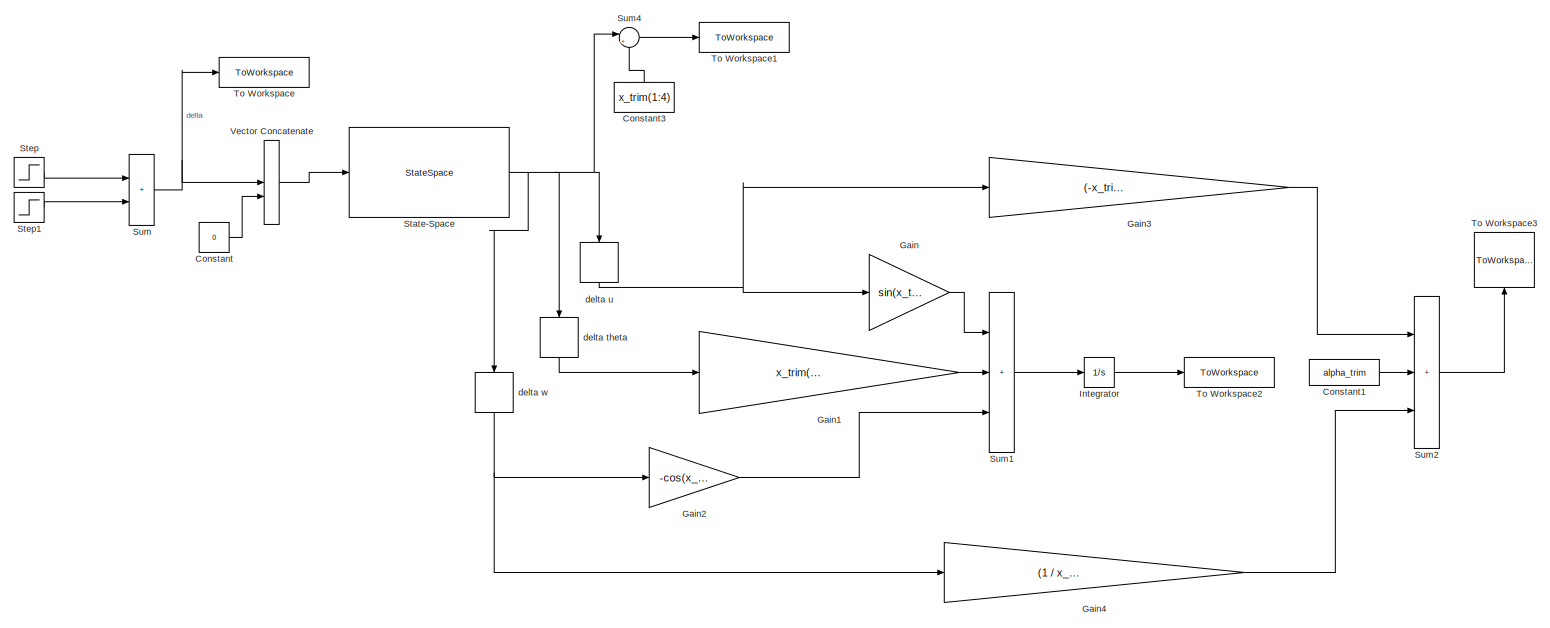
[diagram: root canvas - part 1/1, most of the canvas]
MODEL slx_d81637e92e1e
KIND model
CONFIG AbsTol = auto
CONFIG EnableMultiTasking = off
CONFIG FixedStep = auto
CONFIG MaxStep = auto
CONFIG MinStep = auto
CONFIG RelTol = 1e-3
CONFIG SampleTimeConstraint = Unconstrained
CONFIG SolverName = VariableStepAuto
CONFIG StartTime = 0.0
CONFIG StopTime = 10.0
BLOCK [Constant] Constant
  Value = 0
BLOCK [Constant] Constant1
  Value = alpha_trim
BLOCK [Constant] Constant3
  NameLocation = right
  Value = x_trim(1:4)
BLOCK [Gain] Gain
  Gain = sin(x_trim(4))
BLOCK [Gain] Gain1
  Gain = x_trim(1)*cos(x_trim(4)) + x_trim(2)*sin(x_trim(4))
BLOCK [Gain] Gain2
  Gain = -cos(x_trim(4))
BLOCK [Gain] Gain3
  Gain = (-x_trim(2)/x_trim(1)^2) / (1 + (x_trim(2)/x_trim(1))^2)
BLOCK [Gain] Gain4
  Gain = (1 / x_trim(1)) / (1 + (x_trim(2)/x_trim(1))^2)
BLOCK [Integrator] Integrator
  InitialCondition = h_trim
BLOCK [StateSpace] State-Space
  A = A
  B = B
  C = eye(4)
  D = zeros(4,2)
  InitialCondition = zeros(4,1)
BLOCK [Step] Step
  After = - pi/180
  SampleTime = 0
  Time = 5
BLOCK [Step] Step1
  After = (pi/180)
  SampleTime = 0
  Time = 10
BLOCK [Sum] Sum
  IconShape = rectangular
BLOCK [Sum] Sum1
  IconShape = rectangular
  Inputs = +++
BLOCK [Sum] Sum2
  IconShape = rectangular
  Inputs = +++
BLOCK [Sum] Sum4
  Inputs = |++
BLOCK [ToWorkspace] To Workspace
  FixptAsFi = on
  MaxDataPoints = inf
  SampleTime = -1
  VariableName = delta
BLOCK [ToWorkspace] To Workspace1
  FixptAsFi = on
  MaxDataPoints = inf
  SampleTime = -1
  Save2DSignal = 2-D array (concatenate along first dimension)
  SaveFormat = Structure
  VariableName = y
BLOCK [ToWorkspace] To Workspace2
  FixptAsFi = on
  MaxDataPoints = inf
  SampleTime = -1
  VariableName = h
BLOCK [ToWorkspace] To Workspace3
  FixptAsFi = on
  MaxDataPoints = inf
  NameLocation = right
  SampleTime = -1
  VariableName = alpha
BLOCK [Concatenate] Vector Concatenate
BLOCK [Selector] delta theta
  IndexOptions = Index vector (dialog)
  Indices = 4
  InputPortWidth = 4
  NameLocation = left
  OutputSizes = 1
BLOCK [Selector] delta u
  IndexOptions = Index vector (dialog)
  Indices = 1
  InputPortWidth = 4
  NameLocation = left
  OutputSizes = 1
BLOCK [Selector] delta w
  IndexOptions = Index vector (dialog)
  Indices = 2
  InputPortWidth = 4
  NameLocation = left
  OutputSizes = 1
LINE Constant1:1 -> Sum2:2
LINE Constant3:1 -> Sum4:2
LINE Constant:1 -> Vector Concatenate:2
LINE Gain1:1 -> Sum1:2
LINE Gain2:1 -> Sum1:3
LINE Gain3:1 -> Sum2:1
LINE Gain4:1 -> Sum2:3
LINE Gain:1 -> Sum1:1
LINE Integrator:1 -> To Workspace2:1
NET State-Space:1 -> Sum4:1, delta theta:1, delta u:1, delta w:1
LINE Step1:1 -> Sum:2
LINE Step:1 -> Sum:1
LINE Sum1:1 -> Integrator:1
LINE Sum2:1 -> To Workspace3:1
LINE Sum4:1 -> To Workspace1:1
NET Sum:1 -> To Workspace:1, Vector Concatenate:1
LINE Vector Concatenate:1 -> State-Space:1
LINE delta theta:1 -> Gain1:1
NET delta u:1 -> Gain3:1, Gain:1
NET delta w:1 -> Gain2:1, Gain4:1
note: NET lines group one-source signal fan-out (src -> all destinations, sorted); 1:1 wires keep LINE
